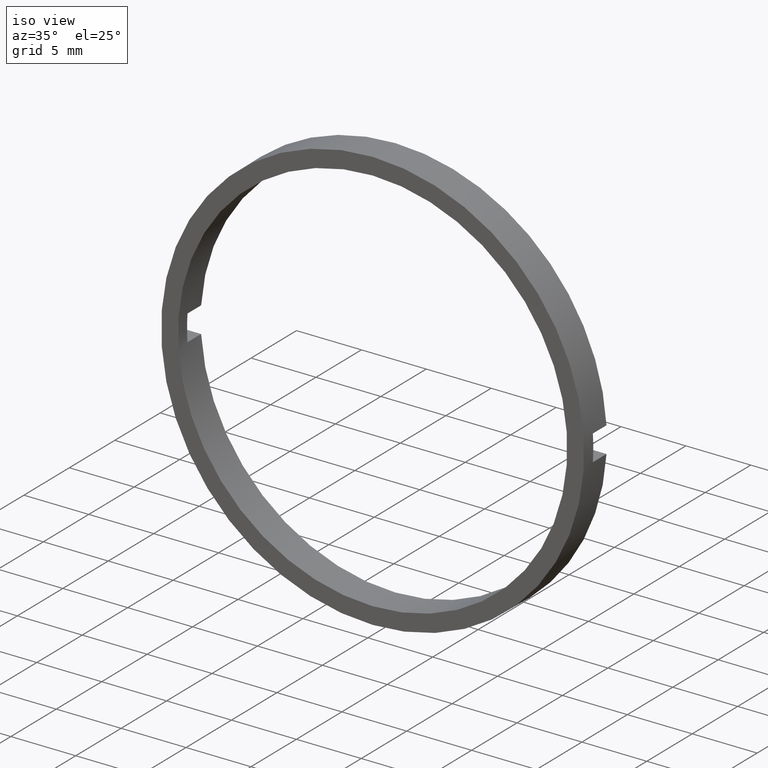
[diagram: clean part render]
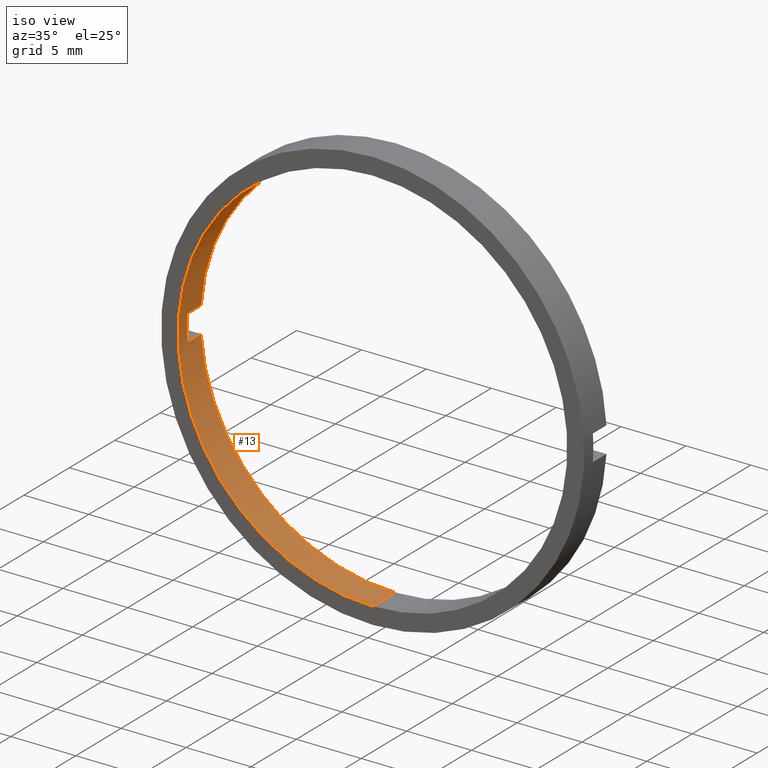
[diagram: same view with one face highlighted and labeled with its STEP entity id]
A machine part, iso view. The second image highlights one B-rep face of the part: STEP entity #13.
In plain terms, the highlighted cylindrical surface (partial cylindrical patch) has radius 15 mm, axis along (-0, 1, -0).
Its self-contained STEP definition (entity closure, byte-faithful):
#13 = ADVANCED_FACE ( 'NONE', ( #487 ), #216, .F. ) ;
#18 = EDGE_CURVE ( 'NONE', #285, #327, #391, .T. ) ;
#22 = DIRECTION ( 'NONE',  ( -0.0000000000000000000, 1.000000000000000000, -0.0000000000000000000 ) ) ;
#26 = VERTEX_POINT ( 'NONE', #158 ) ;
#33 = CIRCLE ( 'NONE', #304, 15.00000000000000700 ) ;
#43 = EDGE_CURVE ( 'NONE', #451, #327, #82, .T. ) ;
#57 = DIRECTION ( 'NONE',  ( 0.0000000000000000000, -1.000000000000000000, 0.0000000000000000000 ) ) ;
#71 = AXIS2_PLACEMENT_3D ( 'NONE', #78, #154, #284 ) ;
#78 = CARTESIAN_POINT ( 'NONE',  ( 0.0000000000000000000, 56.26084262701361600, 0.0000000000000000000 ) ) ;
#79 = LINE ( 'NONE', #225, #387 ) ;
#82 = CIRCLE ( 'NONE', #239, 15.00000000000000700 ) ;
#93 = DIRECTION ( 'NONE',  ( 0.0000000000000000000, 0.0000000000000000000, 1.000000000000000000 ) ) ;
#100 = VERTEX_POINT ( 'NONE', #430 ) ;
#118 = CARTESIAN_POINT ( 'NONE',  ( 0.0000000000000000000, -1.964249787179434000, 0.0000000000000000000 ) ) ;
#135 = CARTESIAN_POINT ( 'NONE',  ( 0.0000000000000000000, -1.964249787179434000, 0.0000000000000000000 ) ) ;
#144 = CARTESIAN_POINT ( 'NONE',  ( -14.96662954709577100, -3.464249787179428400, 0.9999999999999995600 ) ) ;
#150 = EDGE_LOOP ( 'NONE', ( #397, #424, #364, #468, #250, #256, #172, #155 ) ) ;
#154 = DIRECTION ( 'NONE',  ( -0.0000000000000000000, 1.000000000000000000, -0.0000000000000000000 ) ) ;
#155 = ORIENTED_EDGE ( 'NONE', *, *, #18, .F. ) ;
#158 = CARTESIAN_POINT ( 'NONE',  ( -14.96662954709577100, -3.464249787179428400, -0.9999999999999995600 ) ) ;
#172 = ORIENTED_EDGE ( 'NONE', *, *, #43, .T. ) ;
#178 = DIRECTION ( 'NONE',  ( 0.0000000000000000000, 0.0000000000000000000, 1.000000000000000000 ) ) ;
#180 = EDGE_CURVE ( 'NONE', #100, #285, #419, .T. ) ;
#184 = DIRECTION ( 'NONE',  ( -0.0000000000000000000, -1.000000000000000000, -0.0000000000000000000 ) ) ;
#188 = EDGE_CURVE ( 'NONE', #251, #280, #428, .T. ) ;
#208 = DIRECTION ( 'NONE',  ( -0.0000000000000000000, 1.000000000000000000, -0.0000000000000000000 ) ) ;
#216 = CYLINDRICAL_SURFACE ( 'NONE', #71, 15.00000000000000700 ) ;
#219 = CARTESIAN_POINT ( 'NONE',  ( -14.96662954709577100, -1.964249787179434000, -0.9999999999999995600 ) ) ;
#225 = CARTESIAN_POINT ( 'NONE',  ( -14.96662954709577200, 56.26084262701361600, 1.000000000000000000 ) ) ;
#229 = DIRECTION ( 'NONE',  ( 0.0000000000000000000, 0.0000000000000000000, 1.000000000000000000 ) ) ;
#239 = AXIS2_PLACEMENT_3D ( 'NONE', #118, #208, #322 ) ;
#241 = LINE ( 'NONE', #340, #414 ) ;
#250 = ORIENTED_EDGE ( 'NONE', *, *, #392, .F. ) ;
#251 = VERTEX_POINT ( 'NONE', #444 ) ;
#256 = ORIENTED_EDGE ( 'NONE', *, *, #369, .T. ) ;
#270 = DIRECTION ( 'NONE',  ( -0.0000000000000000000, 1.000000000000000000, -0.0000000000000000000 ) ) ;
#271 = AXIS2_PLACEMENT_3D ( 'NONE', #375, #22, #178 ) ;
#280 = VERTEX_POINT ( 'NONE', #219 ) ;
#284 = DIRECTION ( 'NONE',  ( 0.0000000000000000000, 0.0000000000000000000, 1.000000000000000000 ) ) ;
#285 = VERTEX_POINT ( 'NONE', #441 ) ;
#287 = VECTOR ( 'NONE', #421, 1000.000000000000000 ) ;
#304 = AXIS2_PLACEMENT_3D ( 'NONE', #412, #184, #229 ) ;
#317 = CARTESIAN_POINT ( 'NONE',  ( 0.0000000000000000000, 56.26084262701361600, 15.00000000000000700 ) ) ;
#320 = EDGE_CURVE ( 'NONE', #280, #26, #407, .T. ) ;
#322 = DIRECTION ( 'NONE',  ( 0.0000000000000000000, 0.0000000000000000000, 1.000000000000000000 ) ) ;
#327 = VERTEX_POINT ( 'NONE', #379 ) ;
#338 = VERTEX_POINT ( 'NONE', #144 ) ;
#340 = CARTESIAN_POINT ( 'NONE',  ( 1.836970198721030800E-015, 56.26084262701361600, -15.00000000000000700 ) ) ;
#345 = VECTOR ( 'NONE', #57, 1000.000000000000000 ) ;
#364 = ORIENTED_EDGE ( 'NONE', *, *, #188, .T. ) ;
#369 = EDGE_CURVE ( 'NONE', #338, #451, #79, .T. ) ;
#375 = CARTESIAN_POINT ( 'NONE',  ( 0.0000000000000000000, -4.464249787179428900, 0.0000000000000000000 ) ) ;
#378 = DIRECTION ( 'NONE',  ( -0.0000000000000000000, 1.000000000000000000, -0.0000000000000000000 ) ) ;
#379 = CARTESIAN_POINT ( 'NONE',  ( 0.0000000000000000000, -1.964249787179434000, 15.00000000000000700 ) ) ;
#387 = VECTOR ( 'NONE', #496, 1000.000000000000000 ) ;
#391 = LINE ( 'NONE', #317, #287 ) ;
#392 = EDGE_CURVE ( 'NONE', #338, #26, #33, .T. ) ;
#397 = ORIENTED_EDGE ( 'NONE', *, *, #180, .F. ) ;
#400 = EDGE_CURVE ( 'NONE', #100, #251, #241, .T. ) ;
#407 = LINE ( 'NONE', #446, #345 ) ;
#412 = CARTESIAN_POINT ( 'NONE',  ( 0.0000000000000000000, -3.464249787179428400, 0.0000000000000000000 ) ) ;
#414 = VECTOR ( 'NONE', #270, 1000.000000000000000 ) ;
#419 = CIRCLE ( 'NONE', #271, 15.00000000000000700 ) ;
#421 = DIRECTION ( 'NONE',  ( -0.0000000000000000000, 1.000000000000000000, -0.0000000000000000000 ) ) ;
#424 = ORIENTED_EDGE ( 'NONE', *, *, #400, .T. ) ;
#428 = CIRCLE ( 'NONE', #443, 15.00000000000000700 ) ;
#430 = CARTESIAN_POINT ( 'NONE',  ( 1.836970198721030800E-015, -4.464249787179428900, -15.00000000000000700 ) ) ;
#441 = CARTESIAN_POINT ( 'NONE',  ( 0.0000000000000000000, -4.464249787179428900, 15.00000000000000700 ) ) ;
#443 = AXIS2_PLACEMENT_3D ( 'NONE', #135, #378, #93 ) ;
#444 = CARTESIAN_POINT ( 'NONE',  ( 1.836970198721030800E-015, -1.964249787179434000, -15.00000000000000700 ) ) ;
#446 = CARTESIAN_POINT ( 'NONE',  ( -14.96662954709577200, 56.26084262701361600, -1.000000000000000000 ) ) ;
#451 = VERTEX_POINT ( 'NONE', #458 ) ;
#458 = CARTESIAN_POINT ( 'NONE',  ( -14.96662954709577100, -1.964249787179434000, 0.9999999999999995600 ) ) ;
#468 = ORIENTED_EDGE ( 'NONE', *, *, #320, .T. ) ;
#487 = FACE_OUTER_BOUND ( 'NONE', #150, .T. ) ;
#496 = DIRECTION ( 'NONE',  ( -0.0000000000000000000, 1.000000000000000000, -0.0000000000000000000 ) ) ;